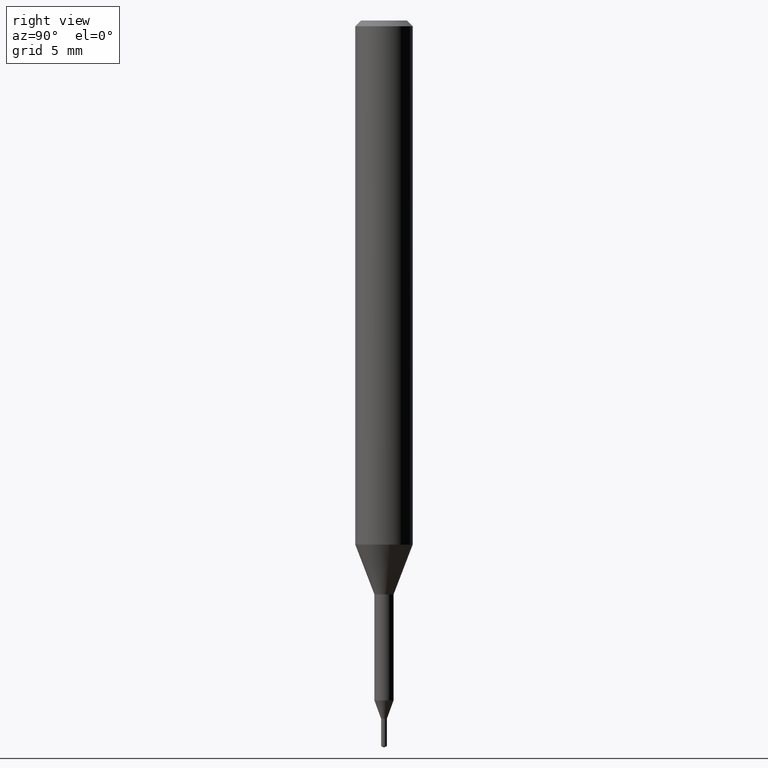
[diagram: clean part render]
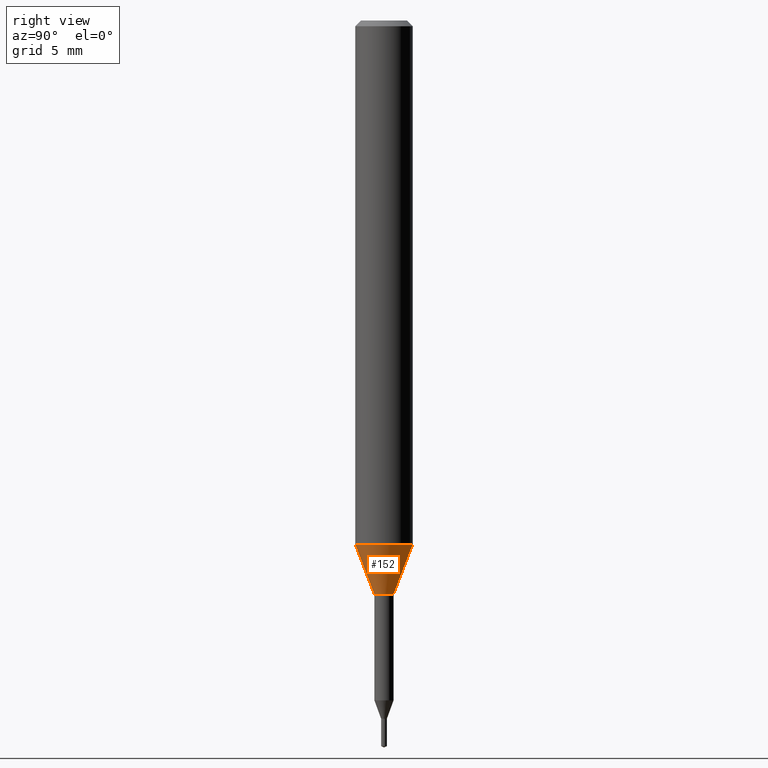
[diagram: same view with one face highlighted and labeled with its STEP entity id]
A machine part, right view. The second image highlights one B-rep face of the part: STEP entity #152.
In plain terms, the highlighted conical surface has half-angle 21.001 deg.
Its self-contained STEP definition (entity closure, byte-faithful):
#118=EDGE_CURVE('',#238,#166,#296,.T.);
#152=ADVANCED_FACE('',(#336),#337,.T.);
#158=VERTEX_POINT('',#343);
#166=VERTEX_POINT('',#351);
#210=EDGE_CURVE('',#238,#158,#400,.T.);
#218=EDGE_CURVE('',#248,#158,#409,.T.);
#238=VERTEX_POINT('',#434);
#248=VERTEX_POINT('',#444);
#256=EDGE_CURVE('',#166,#248,#453,.T.);
#296=LINE('',#490,#491);
#336=FACE_OUTER_BOUND('',#539,.T.);
#337=CONICAL_SURFACE('',#540,1.0,0.366530581623394);
#343=CARTESIAN_POINT('',(1.83690953073357E-016,-1.5,-27.395));
#351=CARTESIAN_POINT('',(0.0,0.5,-30.0));
#400=CIRCLE('',#623,1.5);
#409=LINE('',#635,#636);
#434=CARTESIAN_POINT('',(0.0,1.5,-27.395));
#444=CARTESIAN_POINT('',(6.12303176911189E-017,-0.5,-30.0));
#453=CIRCLE('',#685,0.5);
#490=CARTESIAN_POINT('',(-1.22460635382238E-016,1.0,-28.6975));
#491=VECTOR('',#718,1.0);
#539=EDGE_LOOP('',(#772,#773,#774,#775));
#540=AXIS2_PLACEMENT_3D('',#776,#777,#778);
#623=AXIS2_PLACEMENT_3D('',#846,#847,#848);
#635=CARTESIAN_POINT('',(1.22460635382238E-016,-1.0,-28.6975));
#636=VECTOR('',#862,1.0);
#685=AXIS2_PLACEMENT_3D('',#918,#919,#920);
#718=DIRECTION('',(4.38872745501645E-017,-0.35837862847256,-0.933576327171018));
#772=ORIENTED_EDGE('',*,*,#118,.F.);
#773=ORIENTED_EDGE('',*,*,#210,.T.);
#774=ORIENTED_EDGE('',*,*,#218,.F.);
#775=ORIENTED_EDGE('',*,*,#256,.F.);
#776=CARTESIAN_POINT('',(0.0,0.0,-28.6975));
#777=DIRECTION('',(-0.0,-0.0,1.0));
#778=DIRECTION('',(0.0,1.0,0.0));
#846=CARTESIAN_POINT('',(0.0,0.0,-27.395));
#847=DIRECTION('',(0.0,0.0,-1.0));
#848=DIRECTION('',(0.0,1.0,0.0));
#862=DIRECTION('',(4.38872745501645E-017,-0.35837862847256,0.933576327171018));
#918=CARTESIAN_POINT('',(0.0,0.0,-30.0));
#919=DIRECTION('',(0.0,0.0,-1.0));
#920=DIRECTION('',(0.0,1.0,0.0));